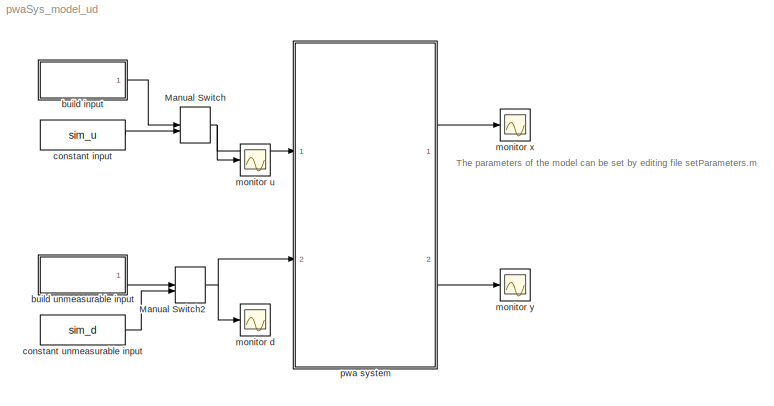
MODEL pwaSys_model_ud
KIND model
CONFIG InitFcn = load simulink.mat\nsetParameters
CONFIG StartFcn = load simulink.mat\nsetParameters\nclear res_X res_U res_Y res_P res_D
CONFIG StopFcn = plotScope
BLOCK [ManualSwitch] Manual Switch
  CurrentSetting = 0
  SID = 27
BLOCK [ManualSwitch] Manual Switch2
  CurrentSetting = 0
  SID = 32
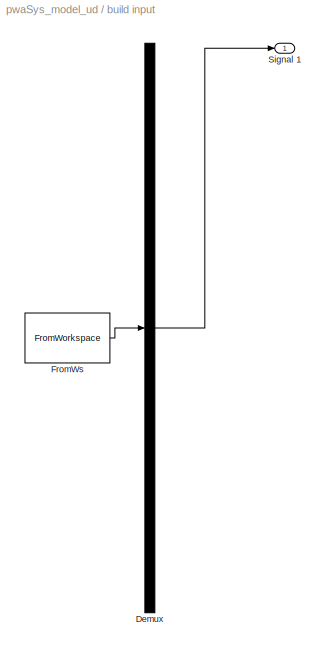
BLOCK [SubSystem] build input
  ClipboardFcn = sigbuilder_block('clipboard');
  CloseFcn = sigbuilder_block('close');
  ContinueFcn = sigbuilder_block('continue');
  CopyFcn = sigbuilder_block('copy');
  DeleteFcn = sigbuilder_block('delete');
  LoadFcn = sigbuilder_block('load');
  MaskHideContents = on
  ModelCloseFcn = sigbuilder_block('modelClose');
  NameChangeFcn = sigbuilder_block('namechange');
  OpenFcn = sigbuilder_block('open',[433.6 120 558.4 400.8 ]);
  PauseFcn = sigbuilder_block('pause');
  Ports = [0, 1]
  PreSaveFcn = sigbuilder_block('preSave');
  RequestExecContextInheritance = off
  SID = 11
  StartFcn = sigbuilder_block('start');
  StopFcn = sigbuilder_block('stop');
  Tag = STV Subsys
  Variant = off
BLOCK [Demux] build input/Demux
  Outputs = 1
  Ports = [1, 1]
  SID = 11:1
  Tag = STV Demux
BLOCK [FromWorkspace] build input/FromWs
  SID = 11:2
  SampleTime = 0
  SigBuilderData = DataTag0
  Tag = STV FromWs
  VariableName = tuvar
  VnvData = DataTag1
  ZeroCross = on
BLOCK [Outport] build input/Signal 1
  IconDisplay = Port number
  SID = 11:3
  Tag = STV Outport
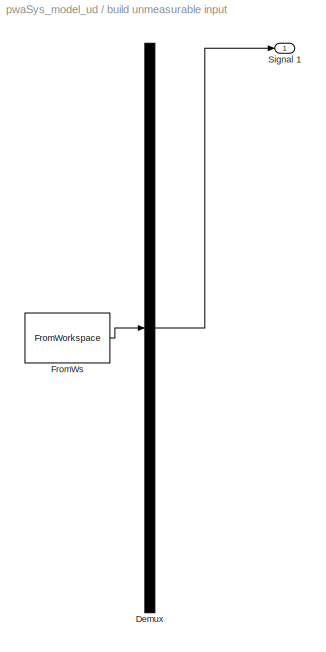
BLOCK [SubSystem] build unmeasurable input
  ClipboardFcn = sigbuilder_block('clipboard');
  CloseFcn = sigbuilder_block('close');
  ContinueFcn = sigbuilder_block('continue');
  CopyFcn = sigbuilder_block('copy');
  DeleteFcn = sigbuilder_block('delete');
  LoadFcn = sigbuilder_block('load');
  MaskHideContents = on
  ModelCloseFcn = sigbuilder_block('modelClose');
  NameChangeFcn = sigbuilder_block('namechange');
  OpenFcn = sigbuilder_block('open',[433.6 121.6 550.4 399.2 ]);
  PauseFcn = sigbuilder_block('pause');
  Ports = [0, 1]
  PreSaveFcn = sigbuilder_block('preSave');
  RequestExecContextInheritance = off
  SID = 13
  StartFcn = sigbuilder_block('start');
  StopFcn = sigbuilder_block('stop');
  Tag = STV Subsys
  Variant = off
BLOCK [Demux] build unmeasurable input/Demux
  Outputs = 1
  Ports = [1, 1]
  SID = 13:1
  Tag = STV Demux
BLOCK [FromWorkspace] build unmeasurable input/FromWs
  SID = 13:2
  SampleTime = 0
  SigBuilderData = DataTag2
  Tag = STV FromWs
  VariableName = tuvar
  VnvData = DataTag3
  ZeroCross = on
BLOCK [Outport] build unmeasurable input/Signal 1
  IconDisplay = Port number
  SID = 13:3
  Tag = STV Outport
BLOCK [Constant] constant input
  SID = 28
  Value = sim_u
BLOCK [Constant] constant unmeasurable input
  SID = 30
  Value = sim_d
BLOCK [Scope] monitor d
  Ports = [1]
  SID = 25
  ScopeSpecificationString = C++SS(StrPVP('Location','[188, 365, 502, 602]'),StrPVP('Open','off'),MxPVP('AxesTitles',24,'struct(''axes1'',''%<SignalLabel>'')'),MxPVP('ScopeGraphics',28,'struct(''FigureColor'',''[0.5 0.5 0.5]'',''AxesColor'',''[0 0 0]'',''AxesTickColor'',''[1 1 1]'',''LineColors'',''[1 1 0;1 0 1;0 1 1;1 0 0;0 1 0;0 0 1]'',''LineStyles'',''-|-|-|-|-|-'',''LineWidths'',''[0.5 0.5 0.5 0.5 0.5 0.5]'',''MarkerStyle...<+263ch>
BLOCK [Scope] monitor u
  Ports = [1]
  SID = 23
  ScopeSpecificationString = C++SS(StrPVP('Location','[188, 365, 512, 604]'),StrPVP('Open','off'),MxPVP('AxesTitles',24,'struct(''axes1'',''%<SignalLabel>'')'),MxPVP('ScopeGraphics',28,'struct(''FigureColor'',''[0.5 0.5 0.5]'',''AxesColor'',''[0 0 0]'',''AxesTickColor'',''[1 1 1]'',''LineColors'',''[1 1 0;1 0 1;0 1 1;1 0 0;0 1 0;0 0 1]'',''LineStyles'',''-|-|-|-|-|-'',''LineWidths'',''[0.5 0.5 0.5 0.5 0.5 0.5]'',''MarkerStyle...<+263ch>
BLOCK [Scope] monitor x
  Ports = [1]
  SID = 16
  ScopeSpecificationString = C++SS(StrPVP('Location','[188, 364, 512, 603]'),StrPVP('Open','off'),MxPVP('AxesTitles',24,'struct(''axes1'',''%<SignalLabel>'')'),MxPVP('ScopeGraphics',28,'struct(''FigureColor'',''[0.5 0.5 0.5]'',''AxesColor'',''[0 0 0]'',''AxesTickColor'',''[1 1 1]'',''LineColors'',''[1 1 0;1 0 1;0 1 1;1 0 0;0 1 0;0 0 1]'',''LineStyles'',''-|-|-|-|-|-'',''LineWidths'',''[0.5 0.5 0.5 0.5 0.5 0.5]'',''MarkerStyle...<+263ch>
BLOCK [Scope] monitor y
  Ports = [1]
  SID = 17
  ScopeSpecificationString = C++SS(StrPVP('Location','[188, 365, 502, 602]'),StrPVP('Open','off'),MxPVP('AxesTitles',24,'struct(''axes1'',''%<SignalLabel>'')'),MxPVP('ScopeGraphics',28,'struct(''FigureColor'',''[0.5 0.5 0.5]'',''AxesColor'',''[0 0 0]'',''AxesTickColor'',''[1 1 1]'',''LineColors'',''[1 1 0;1 0 1;0 1 1;1 0 0;0 1 0;0 0 1]'',''LineStyles'',''-|-|-|-|-|-'',''LineWidths'',''[0.5 0.5 0.5 0.5 0.5 0.5]'',''MarkerStyle...<+263ch>
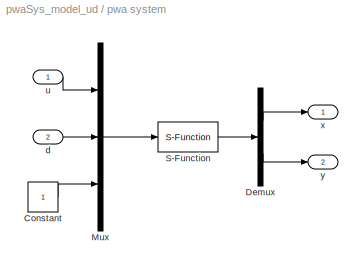
BLOCK [SubSystem] pwa system
  Ports = [2, 2]
  RequestExecContextInheritance = off
  SID = 5
  Variant = off
BLOCK [Constant] pwa system/Constant
  SID = 26
BLOCK [Demux] pwa system/Demux
  DisplayOption = bar
  Outputs = [sim_nx sim_ny]
  Ports = [1, 2]
  SID = 19
BLOCK [Mux] pwa system/Mux
  DisplayOption = bar
  Inputs = 3
  Ports = [3, 1]
  SID = 20
BLOCK [S-Function] pwa system/S-Function
  EnableBusSupport = off
  FunctionName = s_pwaSys_c
  Parameters = A,B,C,D,H,K,sim_x0
  Ports = [1, 1]
  SFunctionDeploymentMode = off
  SID = 35
BLOCK [Inport] pwa system/d
  IconDisplay = Port number
  Port = 2
  SID = 9
BLOCK [Inport] pwa system/u
  IconDisplay = Port number
  SID = 6
BLOCK [Outport] pwa system/x
  IconDisplay = Port number
  SID = 7
BLOCK [Outport] pwa system/y
  IconDisplay = Port number
  Port = 2
  SID = 10
ANNOTATION (root): \n \n
ANNOTATION (root): \n \n The parameters of the model can be set by editing file setParameters.m \n \n You can generate custom signals for system inputs (u) and unmeasurable inputs (d), \n or you can set them constant (choose with the orange switches) \n \n The simulation results are also saved in MATLAB workspace as variables \n sim_X, sim_Y, sim_U and sim_D and automatically plotted
NET Manual Switch2:1 -> monitor d:1, pwa system:2
NET Manual Switch:1 -> monitor u:1, pwa system:1
LINE build input/Demux:1 -> build input/Signal 1:1
LINE build input/FromWs:1 -> build input/Demux:1
LINE build input:1 -> Manual Switch:1
LINE build unmeasurable input/Demux:1 -> build unmeasurable input/Signal 1:1
LINE build unmeasurable input/FromWs:1 -> build unmeasurable input/Demux:1
LINE build unmeasurable input:1 -> Manual Switch2:1
LINE constant input:1 -> Manual Switch:2
LINE constant unmeasurable input:1 -> Manual Switch2:2
LINE pwa system/Constant:1 -> pwa system/Mux:3
LINE pwa system/Demux:1 -> pwa system/x:1
LINE pwa system/Demux:2 -> pwa system/y:1
LINE pwa system/Mux:1 -> pwa system/S-Function:1
LINE pwa system/S-Function:1 -> pwa system/Demux:1
LINE pwa system/d:1 -> pwa system/Mux:2
LINE pwa system/u:1 -> pwa system/Mux:1
LINE pwa system:1 -> monitor x:1
LINE pwa system:2 -> monitor y:1
note: NET lines group one-source signal fan-out (src -> all destinations, sorted); 1:1 wires keep LINE
